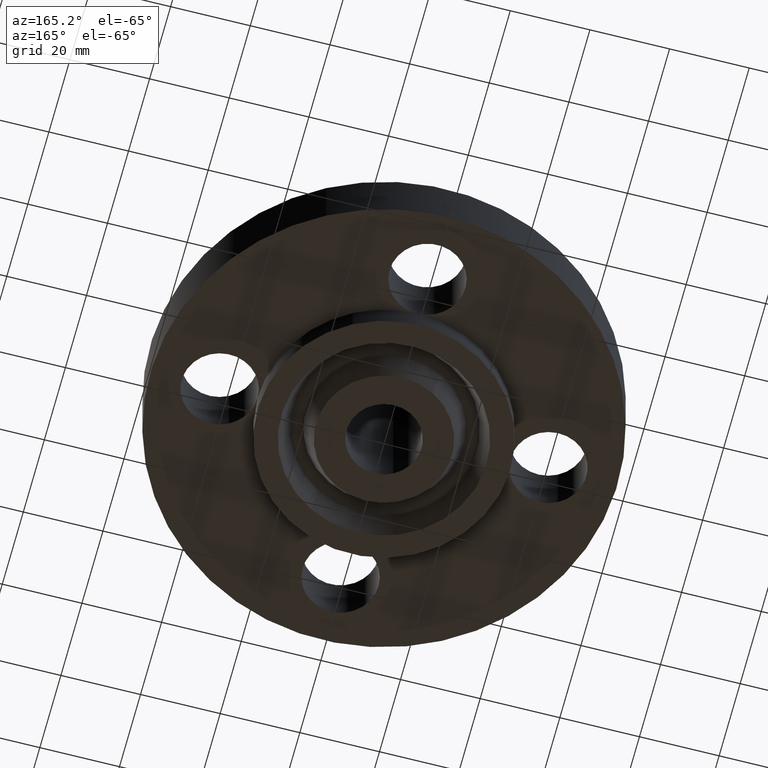
[diagram: clean part render]
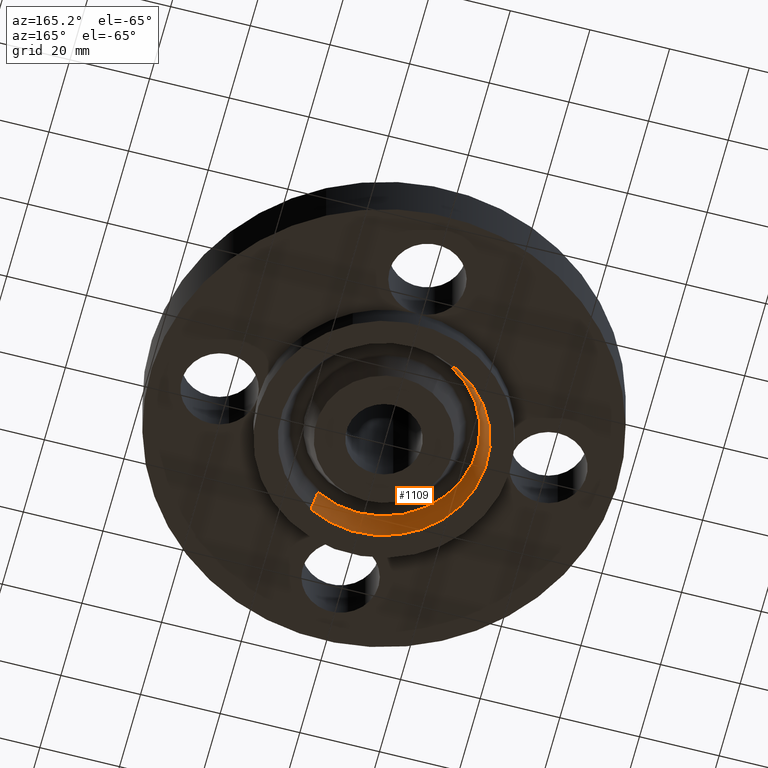
[diagram: same view with one face highlighted and labeled with its STEP entity id]
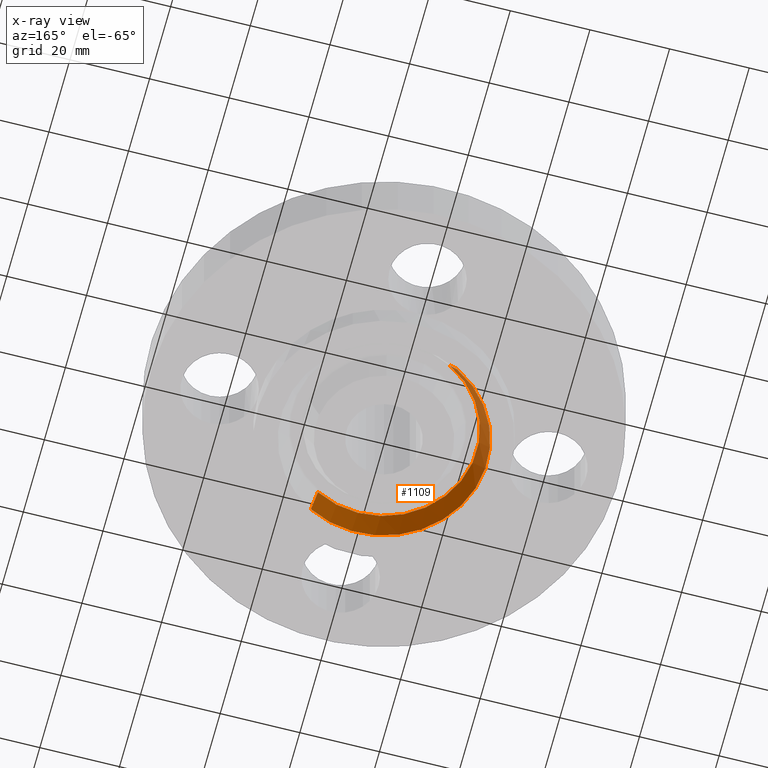
[diagram: x-ray of the same camera — body ghosted, the highlighted face saturated]
A machine part, auxiliary view. The second image highlights one B-rep face of the part: STEP entity #1109.
The next image is the same camera in x-ray: the body ghosted, the highlighted face saturated — about 0% of this face is hidden behind the body in this view.
In plain terms, the highlighted conical surface has half-angle 23 deg.
Its self-contained STEP definition (entity closure, byte-faithful):
#814=AXIS2_PLACEMENT_3D('Circle Axis2P3D',#812,#813,$) ;
#1082=AXIS2_PLACEMENT_3D('Cone Axis2P3D',#1079,#1080,#1081) ;
#1093=AXIS2_PLACEMENT_3D('Circle Axis2P3D',#1091,#1092,$) ;
#812=CARTESIAN_POINT('Axis2P3D Location',(0.,1.13252539455E-011,-0.250000000001)) ;
#816=CARTESIAN_POINT('Vertex',(0.487096347208,-0.891623882873,-0.250000000001)) ;
#818=CARTESIAN_POINT('Vertex',(-0.487096347208,0.891623882896,-0.250000000001)) ;
#1079=CARTESIAN_POINT('Axis2P3D Location',(0.,0.,-0.0188873350169)) ;
#1084=CARTESIAN_POINT('Line Origine',(-0.46358016355,0.848577797406,-0.134443667508)) ;
#1088=CARTESIAN_POINT('Vertex',(-0.440063979876,0.805531711929,-0.018887335017)) ;
#1091=CARTESIAN_POINT('Axis2P3D Location',(0.,0.,-0.0188873350169)) ;
#1095=CARTESIAN_POINT('Vertex',(0.440063979875,-0.80553171193,-0.0188873350169)) ;
#1098=CARTESIAN_POINT('Line Origine',(0.46358016355,-0.848577797406,-0.134443667508)) ;
#813=DIRECTION('Axis2P3D Direction',(0.,0.,-0.0393700787402)) ;
#1080=DIRECTION('Axis2P3D Direction',(-0.,-0.,-0.0393700787402)) ;
#1081=DIRECTION('Axis2P3D XDirection',(0.0188750212049,-0.0345504945626,0.)) ;
#1085=DIRECTION('Vector Direction',(-0.00737505833566,0.0134999537303,-0.0362403485611)) ;
#1092=DIRECTION('Axis2P3D Direction',(-0.,0.,-0.0393700787402)) ;
#1099=DIRECTION('Vector Direction',(0.00737505833566,-0.0134999537303,-0.0362403485611)) ;
#1086=VECTOR('Line Direction',#1085,0.0393700787402) ;
#1100=VECTOR('Line Direction',#1099,0.0393700787402) ;
#1104=ORIENTED_EDGE('',*,*,#820,.T.) ;
#1105=ORIENTED_EDGE('',*,*,#1090,.T.) ;
#1106=ORIENTED_EDGE('',*,*,#1097,.T.) ;
#1107=ORIENTED_EDGE('',*,*,#1102,.F.) ;
#1109=ADVANCED_FACE('PartBody',(#1108),#1083,.F.) ;
#815=CIRCLE('generated circle',#814,1.016) ;
#1094=CIRCLE('generated circle',#1093,0.917898494011) ;
#1083=CONICAL_SURFACE('Cone',#1082,0.917898494011,0.401425727959) ;
#820=EDGE_CURVE('',#817,#819,#815,.T.) ;
#1090=EDGE_CURVE('',#819,#1089,#1087,.F.) ;
#1097=EDGE_CURVE('',#1089,#1096,#1094,.F.) ;
#1102=EDGE_CURVE('',#817,#1096,#1101,.F.) ;
#1103=EDGE_LOOP('',(#1104,#1105,#1106,#1107)) ;
#1108=FACE_OUTER_BOUND('',#1103,.T.) ;
#1087=LINE('Line',#1084,#1086) ;
#1101=LINE('Line',#1098,#1100) ;
#817=VERTEX_POINT('',#816) ;
#819=VERTEX_POINT('',#818) ;
#1089=VERTEX_POINT('',#1088) ;
#1096=VERTEX_POINT('',#1095) ;